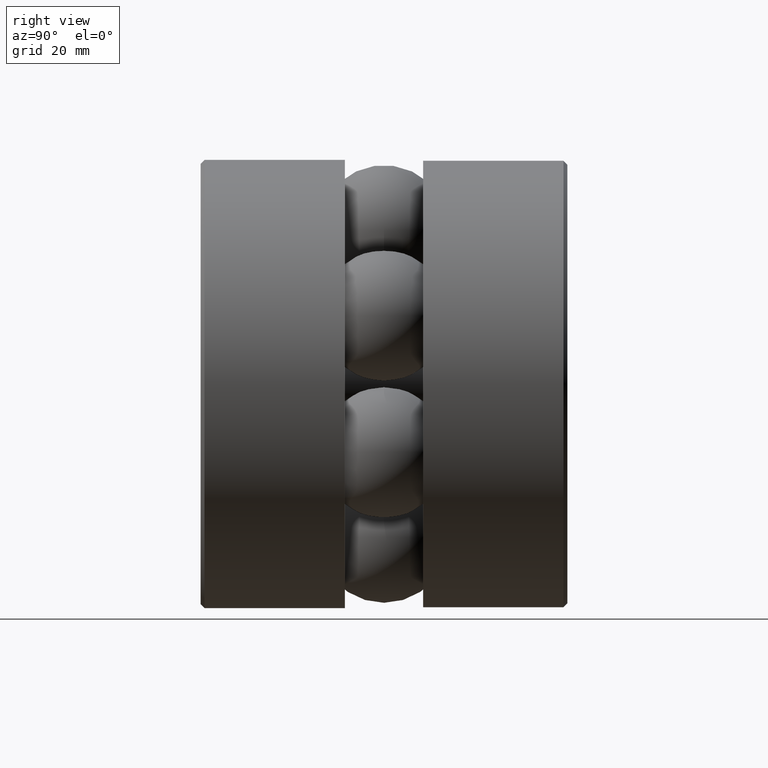
[diagram: clean part render]
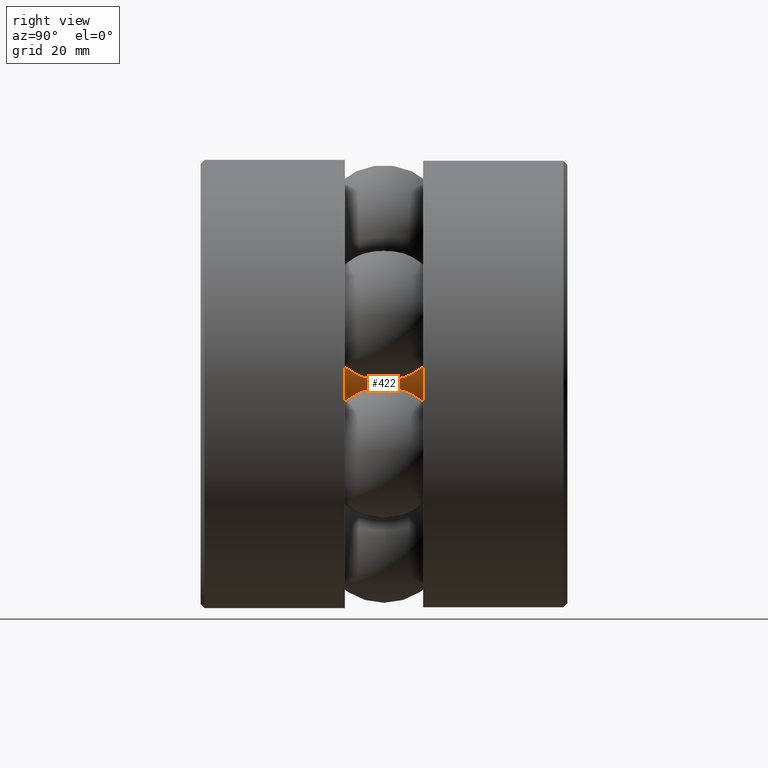
[diagram: same view with one face highlighted and labeled with its STEP entity id]
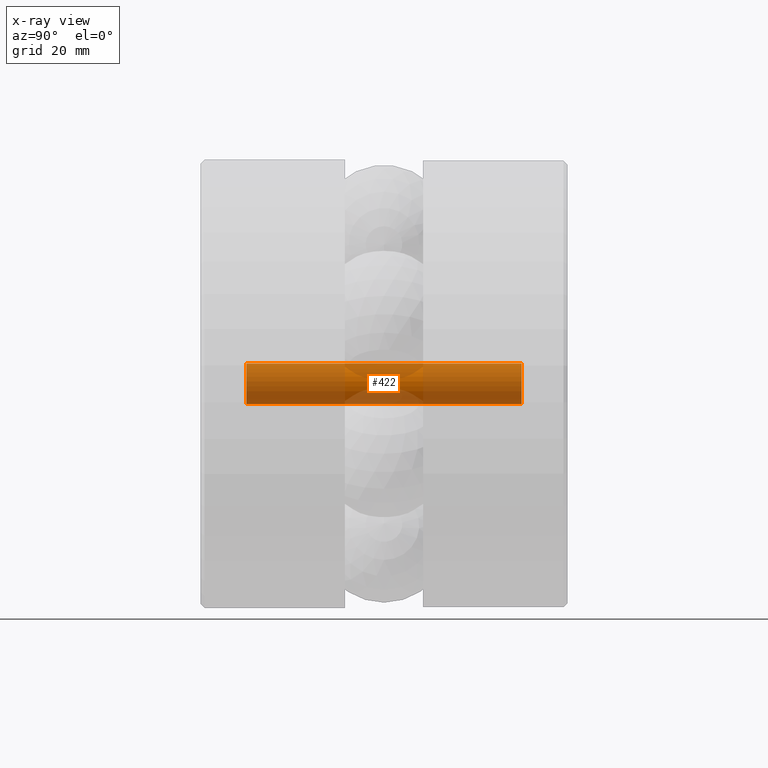
[diagram: x-ray of the same camera — body ghosted, the highlighted face saturated]
A machine part, right view. The second image highlights one B-rep face of the part: STEP entity #422.
The next image is the same camera in x-ray: the body ghosted, the highlighted face saturated — about 89% of this face is hidden behind the body in this view.
In plain terms, the highlighted cylindrical surface (bore or boss wall) has radius 3.9624 mm, axis along (-0, 1, -0).
Its self-contained STEP definition (entity closure, byte-faithful):
#60 = CARTESIAN_POINT ( 'NONE',  ( 0.0000000000000000000, 0.3516250000000003500, 0.1560000000000000300 ) ) ;
#90 = CARTESIAN_POINT ( 'NONE',  ( 0.0000000000000000000, 2.461375000000000300, 0.1560000000000003900 ) ) ;
#150 = FACE_OUTER_BOUND ( 'NONE', #455, .T. ) ;
#161 = ORIENTED_EDGE ( 'NONE', *, *, #334, .T. ) ;
#163 = EDGE_CURVE ( 'NONE', #411, #411, #258, .T. ) ;
#248 = EDGE_LOOP ( 'NONE', ( #161 ) ) ;
#258 = CIRCLE ( 'NONE', #379, 0.1560000000000003900 ) ;
#282 = VERTEX_POINT ( 'NONE', #60 ) ;
#294 = DIRECTION ( 'NONE',  ( -0.0000000000000000000, 1.000000000000000000, -0.0000000000000000000 ) ) ;
#302 = CARTESIAN_POINT ( 'NONE',  ( 0.0000000000000000000, 0.0000000000000000000, 0.0000000000000000000 ) ) ;
#307 = DIRECTION ( 'NONE',  ( 0.0000000000000000000, 0.0000000000000000000, 1.000000000000000000 ) ) ;
#334 = EDGE_CURVE ( 'NONE', #282, #282, #509, .T. ) ;
#335 = AXIS2_PLACEMENT_3D ( 'NONE', #370, #361, #358 ) ;
#358 = DIRECTION ( 'NONE',  ( 0.0000000000000000000, 0.0000000000000000000, 1.000000000000000000 ) ) ;
#361 = DIRECTION ( 'NONE',  ( -0.0000000000000000000, 1.000000000000000000, -0.0000000000000000000 ) ) ;
#370 = CARTESIAN_POINT ( 'NONE',  ( 0.0000000000000000000, 0.3516250000000003500, 0.0000000000000000000 ) ) ;
#378 = ORIENTED_EDGE ( 'NONE', *, *, #163, .F. ) ;
#379 = AXIS2_PLACEMENT_3D ( 'NONE', #546, #543, #542 ) ;
#411 = VERTEX_POINT ( 'NONE', #90 ) ;
#422 = ADVANCED_FACE ( 'NONE', ( #481, #150 ), #465, .T. ) ;
#455 = EDGE_LOOP ( 'NONE', ( #378 ) ) ;
#465 = CYLINDRICAL_SURFACE ( 'NONE', #498, 0.1560000000000001900 ) ;
#481 = FACE_OUTER_BOUND ( 'NONE', #248, .T. ) ;
#498 = AXIS2_PLACEMENT_3D ( 'NONE', #302, #294, #307 ) ;
#509 = CIRCLE ( 'NONE', #335, 0.1560000000000000300 ) ;
#542 = DIRECTION ( 'NONE',  ( 0.0000000000000000000, 0.0000000000000000000, 1.000000000000000000 ) ) ;
#543 = DIRECTION ( 'NONE',  ( -0.0000000000000000000, 1.000000000000000000, -0.0000000000000000000 ) ) ;
#546 = CARTESIAN_POINT ( 'NONE',  ( 0.0000000000000000000, 2.461375000000000300, 0.0000000000000000000 ) ) ;